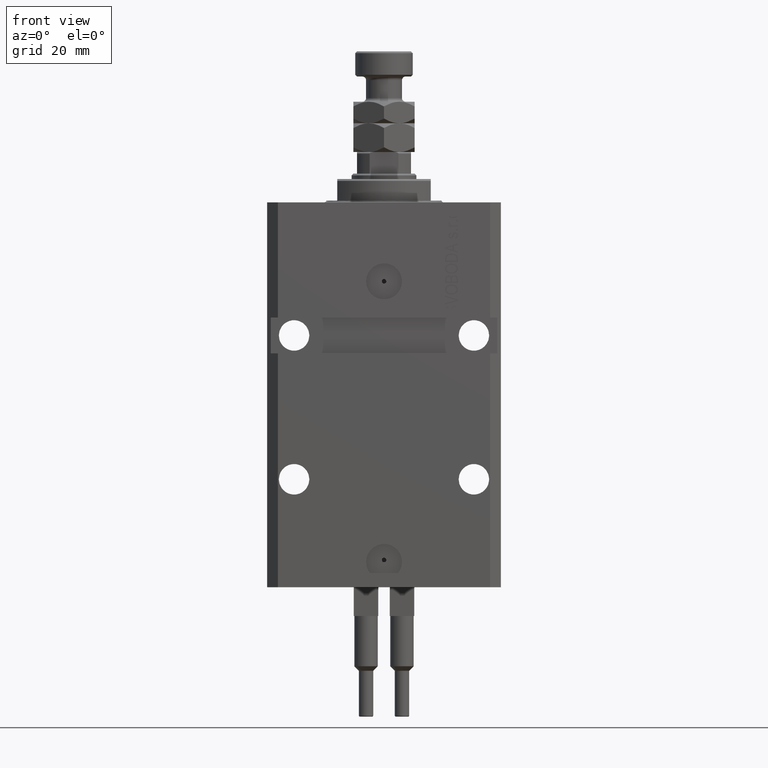
[diagram: clean part render]
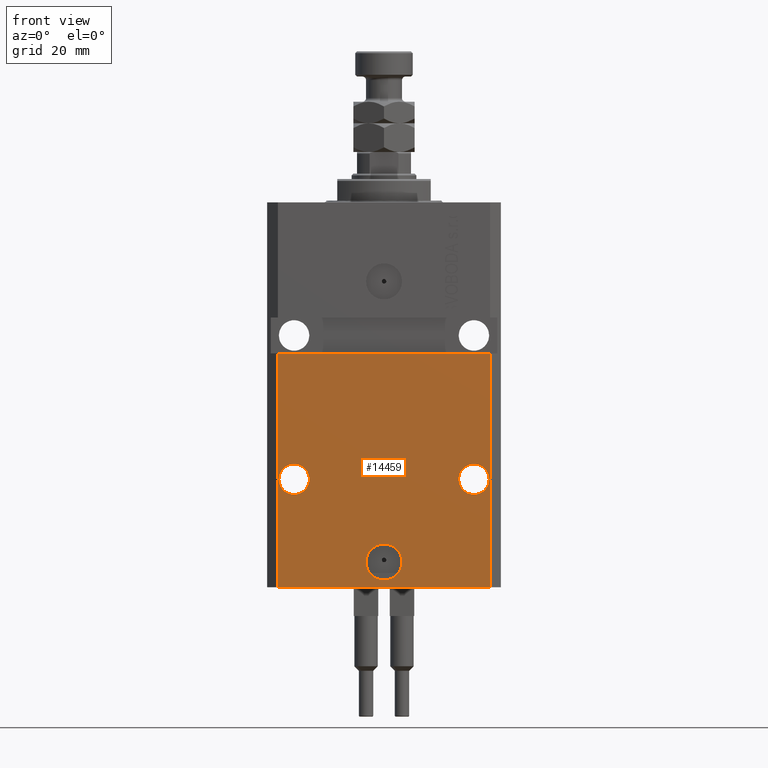
[diagram: same view with one face highlighted and labeled with its STEP entity id]
A machine part, front view. The second image highlights one B-rep face of the part: STEP entity #14459.
In plain terms, the highlighted planar face has unit normal (0, -1, 0).
Its self-contained STEP definition (entity closure, byte-faithful):
#439 = DIRECTION ( 'NONE',  ( 1.000000000000000000, 0.000000000000000000, 0.000000000000000000 ) ) ;
#532 = DIRECTION ( 'NONE',  ( 1.176083712526788232E-16, -1.000000000000000000, 0.000000000000000000 ) ) ;
#762 = AXIS2_PLACEMENT_3D ( 'NONE', #27596, #19716, #31153 ) ;
#868 = CARTESIAN_POINT ( 'NONE',  ( -5.000000000000003553, -22.49999999999949551, -99.99999999999998579 ) ) ;
#1108 = EDGE_CURVE ( 'NONE', #26324, #17645, #22665, .T. ) ;
#1300 = CARTESIAN_POINT ( 'NONE',  ( 25.00000000000000711, -22.49999999999949196, -76.99999999999998579 ) ) ;
#2288 = LINE ( 'NONE', #40625, #33639 ) ;
#2313 = EDGE_CURVE ( 'NONE', #40390, #9362, #4062, .T. ) ;
#2760 = VERTEX_POINT ( 'NONE', #26933 ) ;
#3344 = PLANE ( 'NONE',  #8424 ) ;
#3589 = VERTEX_POINT ( 'NONE', #8440 ) ;
#4062 = CIRCLE ( 'NONE', #12981, 5.000000000000006217 ) ;
#4253 = EDGE_CURVE ( 'NONE', #8672, #4567, #33449, .T. ) ;
#4432 = DIRECTION ( 'NONE',  ( 1.000000000000000000, 0.000000000000000000, 0.000000000000000000 ) ) ;
#4567 = VERTEX_POINT ( 'NONE', #23150 ) ;
#4671 = EDGE_CURVE ( 'NONE', #36217, #27858, #38993, .T. ) ;
#5711 = EDGE_LOOP ( 'NONE', ( #40031, #43941, #8579, #27993 ) ) ;
#6093 = EDGE_CURVE ( 'NONE', #17645, #26324, #8134, .T. ) ;
#6893 = FACE_BOUND ( 'NONE', #17506, .T. ) ;
#7144 = CARTESIAN_POINT ( 'NONE',  ( -29.49999999999650413, -22.49999999999949907, -107.0000000000000000 ) ) ;
#7657 = DIRECTION ( 'NONE',  ( 0.000000000000000000, 0.000000000000000000, 1.000000000000000000 ) ) ;
#7939 = ORIENTED_EDGE ( 'NONE', *, *, #4671, .F. ) ;
#8134 = CIRCLE ( 'NONE', #11376, 4.249999999976592058 ) ;
#8424 = AXIS2_PLACEMENT_3D ( 'NONE', #7144, #10951, #34327 ) ;
#8440 = CARTESIAN_POINT ( 'NONE',  ( -29.49999999999650413, -22.49999999999949907, -41.99999999999999289 ) ) ;
#8465 = LINE ( 'NONE', #17353, #46321 ) ;
#8579 = ORIENTED_EDGE ( 'NONE', *, *, #28178, .T. ) ;
#8672 = VERTEX_POINT ( 'NONE', #39000 ) ;
#8749 = CARTESIAN_POINT ( 'NONE',  ( 2.646188353185214061E-15, -22.49999999999949551, -99.99999999999998579 ) ) ;
#9362 = VERTEX_POINT ( 'NONE', #868 ) ;
#10345 = CARTESIAN_POINT ( 'NONE',  ( 29.24999999998906475, -22.49999999999949196, -76.99999999999998579 ) ) ;
#10506 = VECTOR ( 'NONE', #49403, 1000.000000000000000 ) ;
#10951 = DIRECTION ( 'NONE',  ( 1.176083712526788232E-16, -1.000000000000000000, 0.000000000000000000 ) ) ;
#11376 = AXIS2_PLACEMENT_3D ( 'NONE', #36132, #16047, #15553 ) ;
#12380 = FACE_BOUND ( 'NONE', #23737, .T. ) ;
#12960 = DIRECTION ( 'NONE',  ( 1.000000000000000000, 0.000000000000000000, 0.000000000000000000 ) ) ;
#12981 = AXIS2_PLACEMENT_3D ( 'NONE', #8749, #20171, #4432 ) ;
#13925 = CARTESIAN_POINT ( 'NONE',  ( 25.00000000000000711, -22.49999999999949196, -76.99999999999998579 ) ) ;
#13959 = DIRECTION ( 'NONE',  ( 1.000000000000000000, 1.067522139062765303E-16, 1.067522139062765303E-16 ) ) ;
#14459 = ADVANCED_FACE ( 'NONE', ( #6893, #12380, #31691, #49531 ), #3344, .T. ) ;
#15031 = LINE ( 'NONE', #23404, #44717 ) ;
#15492 = EDGE_CURVE ( 'NONE', #3589, #4567, #2288, .T. ) ;
#15553 = DIRECTION ( 'NONE',  ( -1.000000000000000000, 0.000000000000000000, 0.000000000000000000 ) ) ;
#16047 = DIRECTION ( 'NONE',  ( 1.176083712526788232E-16, -1.000000000000000000, 0.000000000000000000 ) ) ;
#16613 = EDGE_LOOP ( 'NONE', ( #41864, #43257 ) ) ;
#17353 = CARTESIAN_POINT ( 'NONE',  ( -29.49999999999650413, -22.49999999999949907, -107.0000000000000000 ) ) ;
#17506 = EDGE_LOOP ( 'NONE', ( #47523, #40960 ) ) ;
#17645 = VERTEX_POINT ( 'NONE', #18164 ) ;
#18164 = CARTESIAN_POINT ( 'NONE',  ( -29.24999999997659472, -22.49999999999949907, -76.99999999999998579 ) ) ;
#19716 = DIRECTION ( 'NONE',  ( 1.176083712526788232E-16, -1.000000000000000000, 0.000000000000000000 ) ) ;
#20171 = DIRECTION ( 'NONE',  ( 1.176083712526788232E-16, -1.000000000000000000, 0.000000000000000000 ) ) ;
#21372 = CARTESIAN_POINT ( 'NONE',  ( 5.000000000000008882, -22.49999999999949551, -99.99999999999998579 ) ) ;
#22665 = CIRCLE ( 'NONE', #762, 4.249999999976592058 ) ;
#23150 = CARTESIAN_POINT ( 'NONE',  ( 29.49999999999650058, -22.49999999999949196, -41.99999999999998579 ) ) ;
#23404 = CARTESIAN_POINT ( 'NONE',  ( -29.49999999999650413, -22.49999999999949907, -107.0000000000000000 ) ) ;
#23737 = EDGE_LOOP ( 'NONE', ( #48956, #7939 ) ) ;
#23748 = CIRCLE ( 'NONE', #36737, 4.249999999989057642 ) ;
#23816 = AXIS2_PLACEMENT_3D ( 'NONE', #35225, #39530, #439 ) ;
#25863 = DIRECTION ( 'NONE',  ( 1.000000000000000000, 0.000000000000000000, 0.000000000000000000 ) ) ;
#26324 = VERTEX_POINT ( 'NONE', #47277 ) ;
#26933 = CARTESIAN_POINT ( 'NONE',  ( -29.49999999999650413, -22.49999999999949907, -107.0000000000000000 ) ) ;
#27596 = CARTESIAN_POINT ( 'NONE',  ( -25.00000000000000000, -22.49999999999949907, -76.99999999999998579 ) ) ;
#27858 = VERTEX_POINT ( 'NONE', #10345 ) ;
#27993 = ORIENTED_EDGE ( 'NONE', *, *, #4253, .T. ) ;
#28178 = EDGE_CURVE ( 'NONE', #2760, #8672, #8465, .T. ) ;
#28879 = EDGE_CURVE ( 'NONE', #2760, #3589, #15031, .T. ) ;
#30807 = EDGE_CURVE ( 'NONE', #27858, #36217, #23748, .T. ) ;
#31153 = DIRECTION ( 'NONE',  ( -1.000000000000000000, 0.000000000000000000, 0.000000000000000000 ) ) ;
#31691 = FACE_BOUND ( 'NONE', #16613, .T. ) ;
#32525 = AXIS2_PLACEMENT_3D ( 'NONE', #1300, #532, #12960 ) ;
#33325 = EDGE_CURVE ( 'NONE', #9362, #40390, #42433, .T. ) ;
#33449 = LINE ( 'NONE', #34207, #10506 ) ;
#33639 = VECTOR ( 'NONE', #13959, 1000.000000000000000 ) ;
#34170 = CARTESIAN_POINT ( 'NONE',  ( 20.75000000001094946, -22.49999999999949196, -76.99999999999998579 ) ) ;
#34207 = CARTESIAN_POINT ( 'NONE',  ( 29.49999999999650413, -22.49999999999949196, -107.0000000000000000 ) ) ;
#34327 = DIRECTION ( 'NONE',  ( 1.000000000000000000, 1.176083712526788232E-16, 0.000000000000000000 ) ) ;
#35225 = CARTESIAN_POINT ( 'NONE',  ( 2.646188353185214061E-15, -22.49999999999949551, -99.99999999999998579 ) ) ;
#36132 = CARTESIAN_POINT ( 'NONE',  ( -25.00000000000000000, -22.49999999999949907, -76.99999999999998579 ) ) ;
#36217 = VERTEX_POINT ( 'NONE', #34170 ) ;
#36737 = AXIS2_PLACEMENT_3D ( 'NONE', #13925, #37045, #25863 ) ;
#37045 = DIRECTION ( 'NONE',  ( 1.176083712526788232E-16, -1.000000000000000000, 0.000000000000000000 ) ) ;
#38993 = CIRCLE ( 'NONE', #32525, 4.249999999989057642 ) ;
#39000 = CARTESIAN_POINT ( 'NONE',  ( 29.49999999999650413, -22.49999999999949196, -107.0000000000000000 ) ) ;
#39530 = DIRECTION ( 'NONE',  ( 1.176083712526788232E-16, -1.000000000000000000, 0.000000000000000000 ) ) ;
#40031 = ORIENTED_EDGE ( 'NONE', *, *, #15492, .F. ) ;
#40390 = VERTEX_POINT ( 'NONE', #21372 ) ;
#40625 = CARTESIAN_POINT ( 'NONE',  ( -32.49999999999650413, -22.49999999999949907, -41.99999999999999289 ) ) ;
#40960 = ORIENTED_EDGE ( 'NONE', *, *, #33325, .F. ) ;
#41864 = ORIENTED_EDGE ( 'NONE', *, *, #1108, .F. ) ;
#42433 = CIRCLE ( 'NONE', #23816, 5.000000000000006217 ) ;
#43257 = ORIENTED_EDGE ( 'NONE', *, *, #6093, .F. ) ;
#43941 = ORIENTED_EDGE ( 'NONE', *, *, #28879, .F. ) ;
#44717 = VECTOR ( 'NONE', #7657, 1000.000000000000000 ) ;
#46321 = VECTOR ( 'NONE', #48321, 1000.000000000000000 ) ;
#47277 = CARTESIAN_POINT ( 'NONE',  ( -20.75000000002340883, -22.49999999999949907, -76.99999999999998579 ) ) ;
#47523 = ORIENTED_EDGE ( 'NONE', *, *, #2313, .F. ) ;
#48321 = DIRECTION ( 'NONE',  ( 1.000000000000000000, 1.176083712526788232E-16, 0.000000000000000000 ) ) ;
#48956 = ORIENTED_EDGE ( 'NONE', *, *, #30807, .F. ) ;
#49403 = DIRECTION ( 'NONE',  ( 0.000000000000000000, 0.000000000000000000, 1.000000000000000000 ) ) ;
#49531 = FACE_OUTER_BOUND ( 'NONE', #5711, .T. ) ;